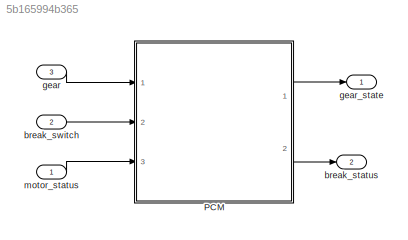
MODEL slx_5b165994b365
KIND model
CONFIG AbsTol = auto
CONFIG EnableMultiTasking = off
CONFIG FixedStep = 0.1
CONFIG MaxStep = auto
CONFIG MinStep = auto
CONFIG RelTol = 1e-3
CONFIG SampleTimeConstraint = Unconstrained
CONFIG Solver = FixedStepAuto
CONFIG SolverName = FixedStepAuto
CONFIG StartTime = 0.0
CONFIG StopTime = 10.0
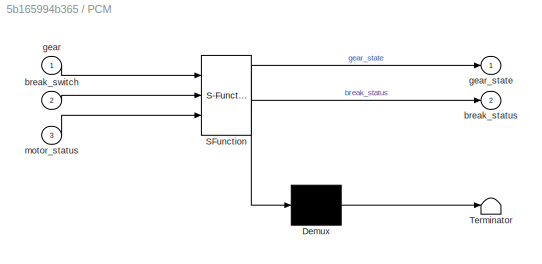
BLOCK [SubSystem] PCM
  ErrorFcn = Stateflow.Translate.translate
  PermitHierarchicalResolution = ExplicitOnly
  Ports = [3, 2]
  RequestExecContextInheritance = off
  SFBlockType = Chart
  TreatAsAtomicUnit = on
BLOCK [Demux] PCM/ Demux 
  Outputs = 1
  Ports = [1, 1]
BLOCK [S-Function] PCM/ SFunction 
  EnableBusSupport = on
  FunctionName = sf_sfun
  PortCounts = [3 3]
  Ports = [3, 3]
  SFcnIsStateOwnerBlock = off
  SFunctionDeploymentMode = off
  Tag = Stateflow S-Function 5
BLOCK [Terminator] PCM/ Terminator 
BLOCK [Outport] PCM/break_status
  IconDisplay = Port number
  Port = 2
BLOCK [Inport] PCM/break_switch
  IconDisplay = Port number
  Port = 2
BLOCK [Inport] PCM/gear
  IconDisplay = Port number
BLOCK [Outport] PCM/gear_state
  IconDisplay = Port number
BLOCK [Inport] PCM/motor_status
  IconDisplay = Port number
  Port = 3
BLOCK [Outport] break_status
  IconDisplay = Port number
  Port = 2
BLOCK [Inport] break_switch
  IconDisplay = Port number
  Port = 2
BLOCK [Inport] gear
  IconDisplay = Port number
  Port = 3
BLOCK [Outport] gear_state
  IconDisplay = Port number
BLOCK [Inport] motor_status
  IconDisplay = Port number
LINE PCM:1 -> gear_state:1
LINE PCM:2 -> break_status:1
LINE break_switch:1 -> PCM:2
LINE gear:1 -> PCM:1
LINE motor_status:1 -> PCM:3
CHART PCM states=3 transitions=7
  STATE_LABEL 'checking_GSM_state\nentry:\ngear_state=0;\nduring:\nif(gear==0)\n    gear_state=0;\nelseif(gear==1)\n    gear_state=1;\nelseif(gear==2)\n    gear_state=2;\nelseif(gear==3)\n    gear_state=3;\nelseif(gear==4)\n    gear_state=4;\nend\naux_1=0;\n'
  STATE_LABEL 'motor_off_no_gear_change\n\nentry:\nbreak_status=0;\nbreak_status=break_switch;%atribui o estado do freio\ngear_state = 1; %não atribui o estado da marcha\naux_1=1;\n'
  STATE_LABEL 'motor_on_gear_change_enable\n\nentry:\nbreak_status=break_switch;\ngear_state=gear;\nduring:\nbreak_status=break_switch;%atribui o estado do freio\ngear_state=gear;%atribui o estado da marcha\naux_1=1;\n'
